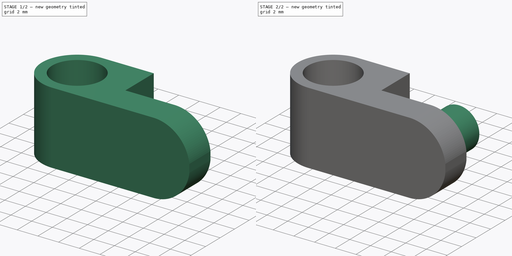
[diagram: build sequence overview — one tinted view per stage of 2, left to right]
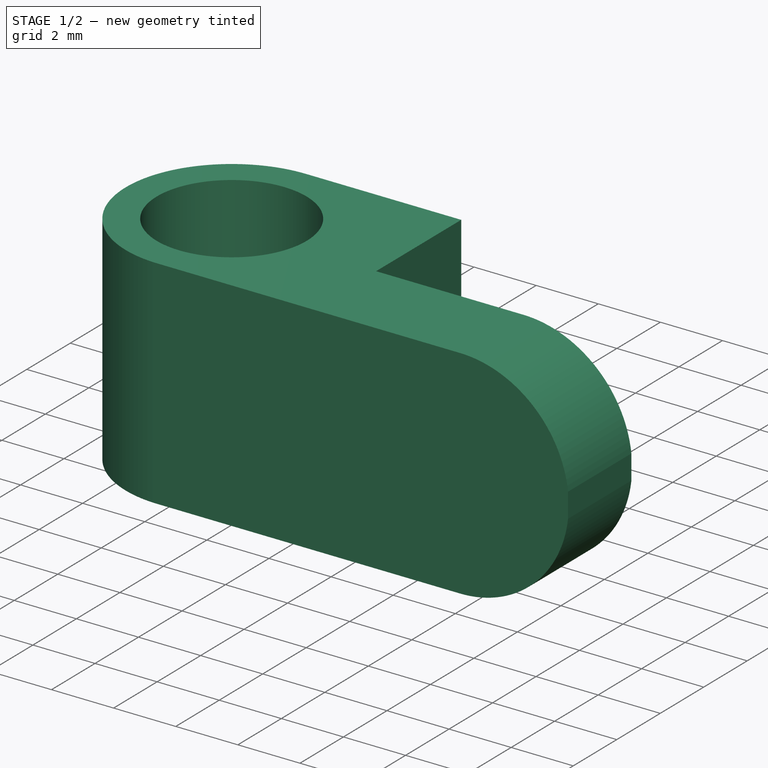
[diagram: stage 1 of 2 — iso view after this stage's code; geometry added in this stage tinted green]
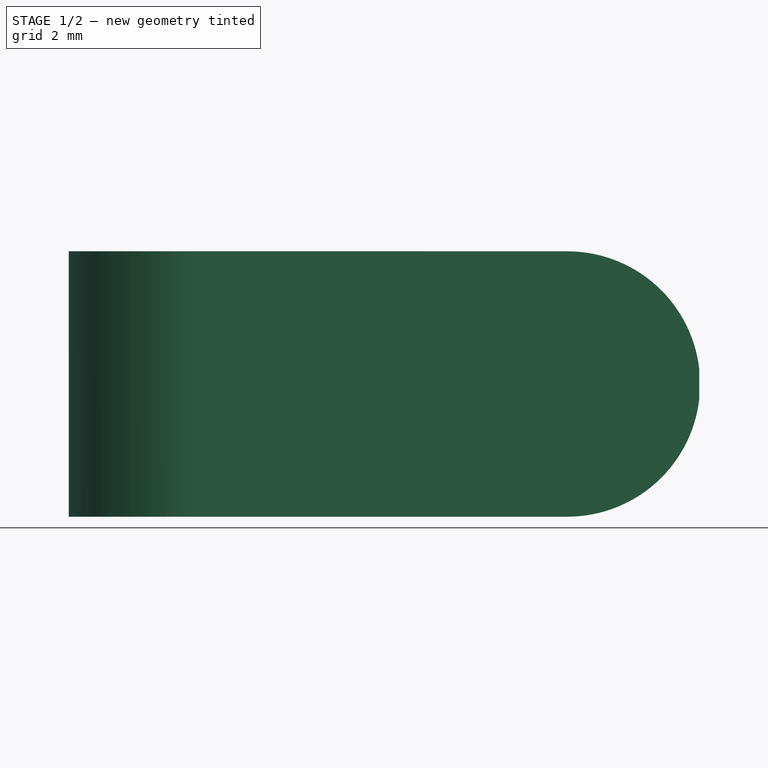
[diagram: stage 1 of 2 — front view after this stage's code; geometry added in this stage tinted green]
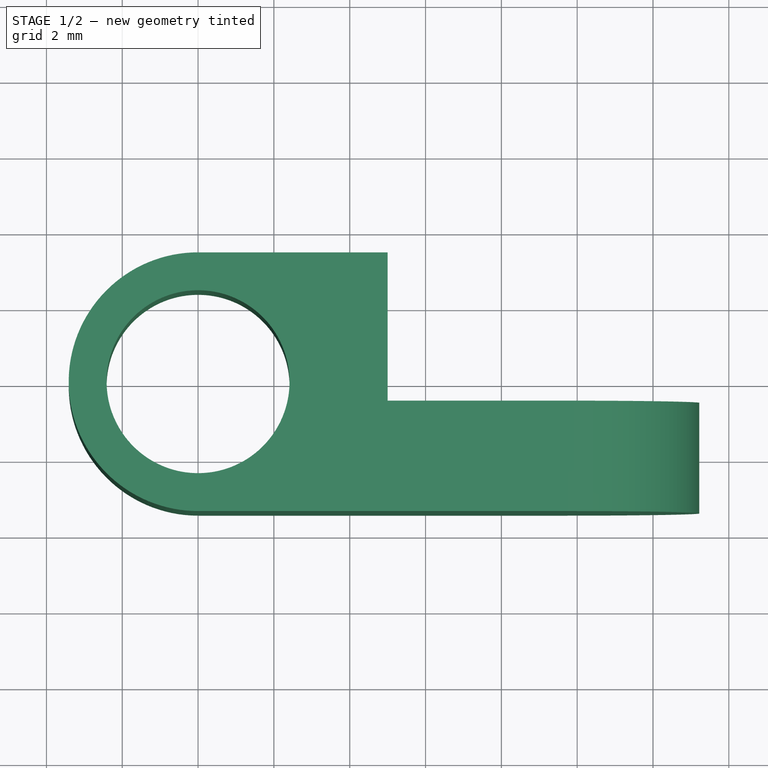
[diagram: stage 1 of 2 — top view after this stage's code; geometry added in this stage tinted green]
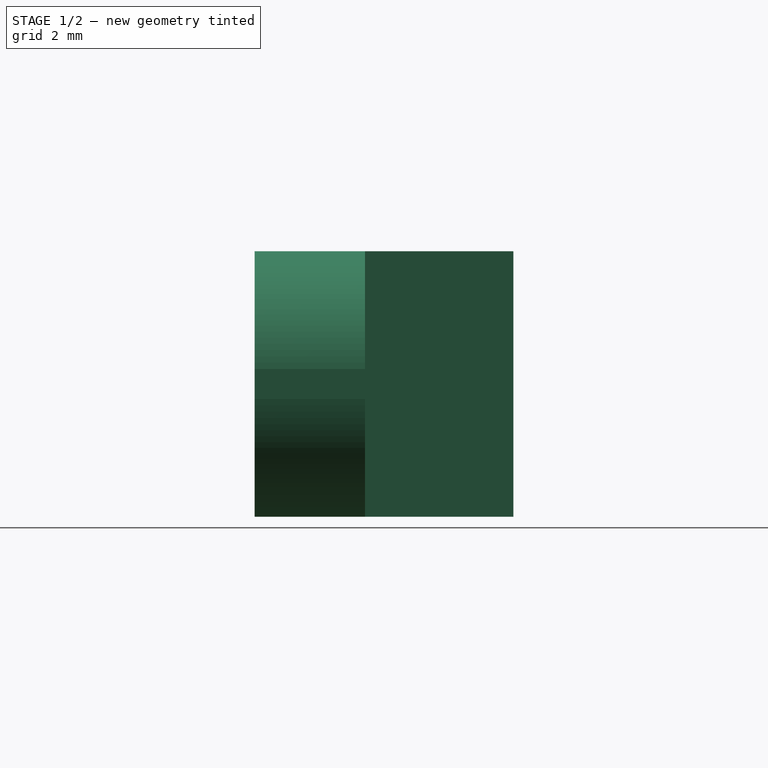
[diagram: stage 1 of 2 — right view after this stage's code; geometry added in this stage tinted green]
FCSTD DOCUMENT  (FreeCAD 0.19R24291 (Git))
Label: Bushing
License: All rights reserved
LicenseURL: http://en.wikipedia.org/wiki/All_rights_reserved
objects: Sketcher::SketchObject×4, PartDesign::Pad×3, PartDesign::Body×2, Spreadsheet::Sheet×1, PartDesign::Pocket×1
note: 14 computed .brp shape members not serialized (recipe doc carries the construction recipe); baked Part::Feature solids carry a one-line shape summary decoded from their .brp

FEATURE [PartDesign::Body] Body  label="Old Bushing"
  Group = -> [Sketch,Pad]
  Origin = -> Origin
  Tip = -> Pad
FEATURE [Sketcher::SketchObject] Sketch001
  FullyConstrained = false
  MapMode = 5
  Support = -> [XY_Plane001]
  expr: Constraints[9] = (<<Parameters>>.HoleSize + <<Parameters>>.Border) / 2
  expr: Constraints[5] = <<Parameters>>.HoleSize / 2 + <<Parameters>>.Border
  expr: Constraints[4] = <<Parameters>>.HoleSize / 2
  sketch-geometry (8):
    g0: ArcOfCircle CenterX=0 CenterY=0 CenterZ=0 NormalX=0 NormalY=0 NormalZ=1 AngleXU=0 Radius=3.413 StartAngle=1.5708 EndAngle=4.71239
    g1: LineSegment StartX=-6e-16 StartY=-3.413 StartZ=0 EndX=13.2204 EndY=-3.413 EndZ=0
    g2: Circle CenterX=0 CenterY=0 CenterZ=0 NormalX=0 NormalY=0 NormalZ=1 AngleXU=0 Radius=2.413
    g3: LineSegment StartX=5 StartY=3.413 StartZ=0 EndX=5 EndY=-0.5 EndZ=0
    g4: LineSegment StartX=5 StartY=-0.5 StartZ=0 EndX=13.2204 EndY=-0.5 EndZ=0
    g5: LineSegment StartX=2e-16 StartY=3.413 StartZ=0 EndX=5 EndY=3.413 EndZ=0
    g6: GeomPoint X=2e-16 Y=3.413 Z=0
    g7: LineSegment StartX=13.2204 StartY=-0.5 StartZ=0 EndX=13.2204 EndY=-3.413 EndZ=0
  constraints (19):
    c: Tangent(g0,g1) = -1.5708
    c: Horizontal(g1)
    c: Coincident(g0,g-1)
    c: Coincident(g2,g0)
    c: Radius(g2) = 2.413
    c: Radius(g0) = 3.413
    c: Vertical(g3)
    c: Coincident(g4,g3)
    c: Horizontal(g4)
    c: DistanceY(g1,g4) = 2.913
    c: PointOnObject(g5,g-2)
    c: Coincident(g5,g3)
    c: Coincident(g6,g5)
    c: Coincident(g5,g0)
    c: Coincident(g7,g4)
    c: Coincident(g7,g1)
    c: Vertical(g7)
    c: Parallel(g5,g-1)
    c: DistanceX(g0,g3) = 5
FEATURE [PartDesign::Pad] Pad001
  Direction = (1,1,1)
  Length = 7
  Length2 = 100
  Profile = -> Sketch001
  Type = 0
FEATURE [Sketcher::SketchObject] Sketch002
  FullyConstrained = false
  MapMode = 5
  Placement = pos=(0,-0.5,0) rot=(0,0.707107,0.707107;3.14159rad)
  Support = -> [Pad001]
  expr: Constraints[1] = Pad001.Length / 2
  sketch-geometry (4):
    g0: ArcOfCircle CenterX=-9.74267 CenterY=3.5 CenterZ=0 NormalX=0 NormalY=0 NormalZ=1 AngleXU=0 Radius=3.5 StartAngle=1.5708 EndAngle=4.71239
    g1: LineSegment StartX=-9.74267 StartY=7 StartZ=0 EndX=-14.1666 EndY=7 EndZ=0
    g2: LineSegment StartX=-14.1666 StartY=7 StartZ=0 EndX=-14.1666 EndY=0 EndZ=0
    g3: LineSegment StartX=-14.1666 StartY=0 StartZ=0 EndX=-9.74267 EndY=0 EndZ=0
  constraints (9):
    c: PointOnObject(g0,g-1)
    c: Radius(g0) = 3.5
    c: Coincident(g1,g2)
    c: Coincident(g2,g3)
    c: Horizontal(g1)
    c: Horizontal(g3)
    c: Vertical(g2)
    c: Coincident(g1,g0)
    c: Coincident(g0,g3)
FEATURE [Sketcher::SketchObject] Sketch003
  FullyConstrained = false
  MapMode = 5
  Placement = pos=(0,-0.5,0) rot=(0,0.707107,0.707107;3.14159rad)
  Support = -> [Pad001]
  expr: Constraints[4] = Pad001.Length / 2
  sketch-geometry (5):
    g0: ArcOfCircle CenterX=-9.74267 CenterY=3.5 CenterZ=0 NormalX=0 NormalY=0 NormalZ=1 AngleXU=0 Radius=3.5 StartAngle=1.5708 EndAngle=4.71239
    g1: LineSegment StartX=-5 StartY=7 StartZ=0 EndX=-9.74267 EndY=7 EndZ=0
    g2: LineSegment StartX=-5 StartY=-1.87e-14 StartZ=0 EndX=-9.74267 EndY=8.9e-15 EndZ=0
    g3: LineSegment StartX=-5 StartY=7 StartZ=0 EndX=-5 EndY=-1.87e-14 EndZ=0
    g4: Circle CenterX=-9.74267 CenterY=3.5 CenterZ=0 NormalX=0 NormalY=0 NormalZ=1 AngleXU=0 Radius=1.98
  constraints (12):
    c: Tangent(g1,g0) = -1.5708
    c: Tangent(g2,g0) = 1.5708
    c: Horizontal(g1)
    c: PointOnObject(g0,g-1)
    c: Radius(g0) = 3.5
    c: Equal(g2,g1)
    c: DistanceX(g2,g-1) = 5
    c: Coincident(g3,g1)
    c: Coincident(g3,g2)
    c: Vertical(g3)
    c: Radius(g4) = 1.98
    c: Coincident(g0,g4)
FEATURE [PartDesign::Pocket] Pocket
  BaseFeature = -> Pad001
  Length = 5
  Length2 = 100
  Profile = -> Sketch002
  Type = 0
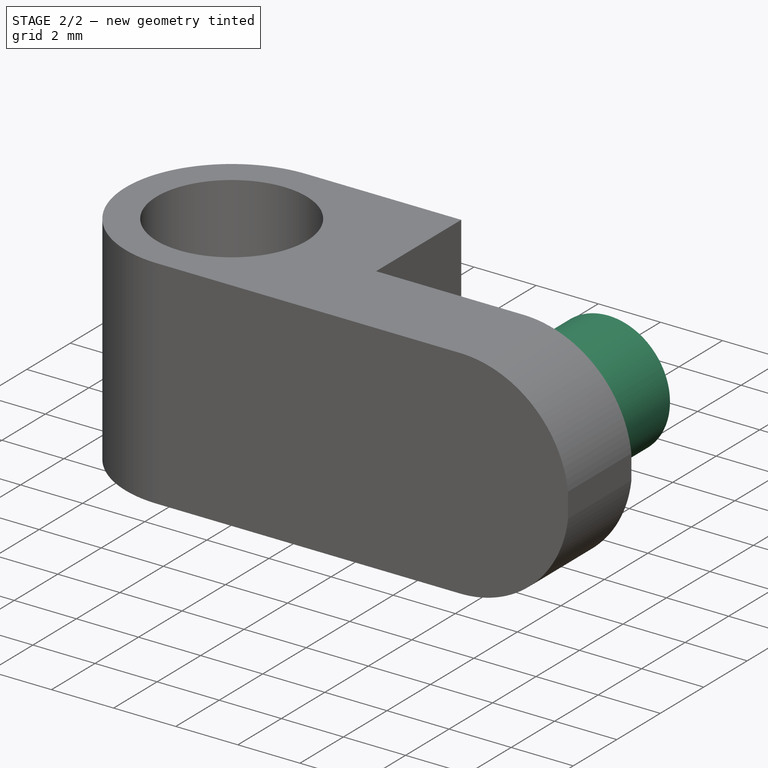
[diagram: stage 2 of 2 — iso view after this stage's code; geometry added in this stage tinted green]
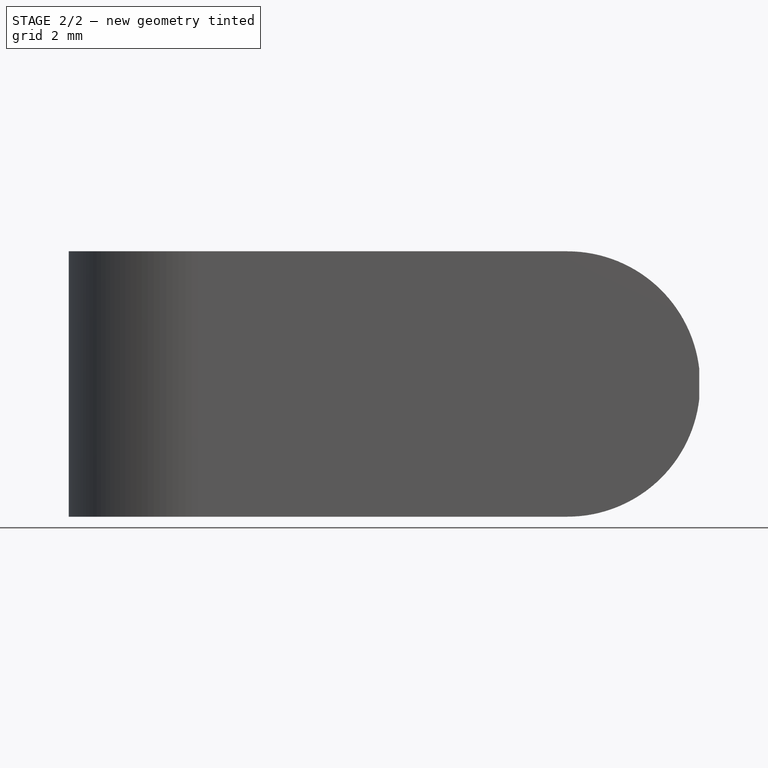
[diagram: stage 2 of 2 — front view after this stage's code; geometry added in this stage tinted green]
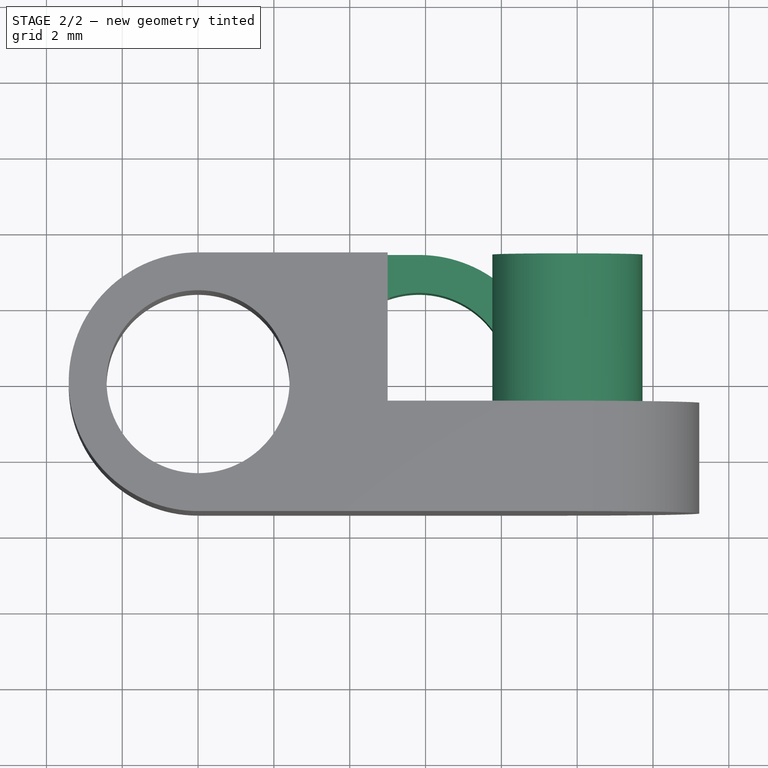
[diagram: stage 2 of 2 — top view after this stage's code; geometry added in this stage tinted green]
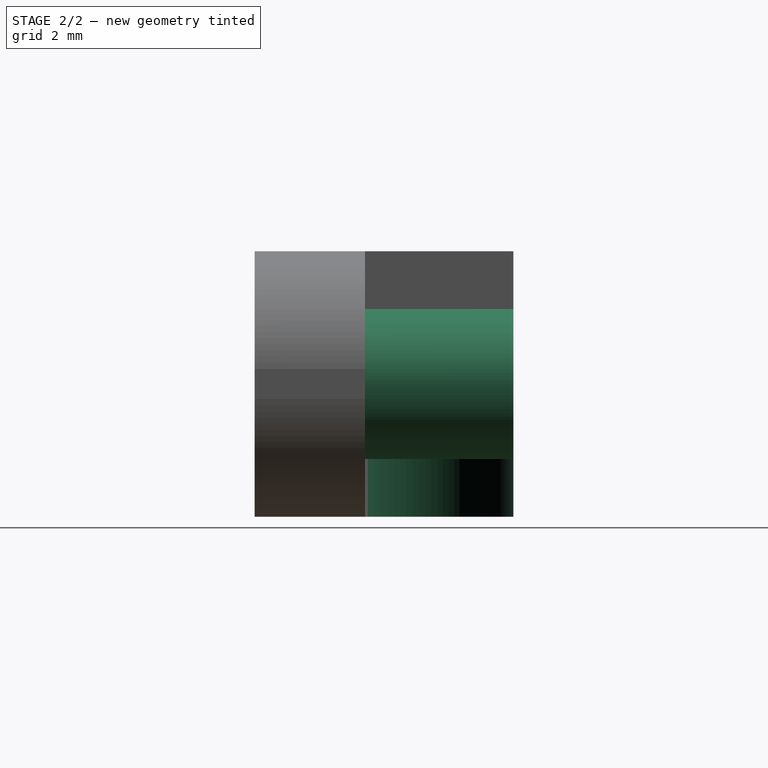
[diagram: stage 2 of 2 — right view after this stage's code; geometry added in this stage tinted green]
FEATURE [Sketcher::SketchObject] Sketch
  FullyConstrained = true
  MapMode = 5
  Support = -> [XY_Plane]
  expr: Constraints[10] = <<Parameters>>.HoleSize + <<Parameters>>.Border
  expr: Constraints[13] = <<Parameters>>.HoleSize / 2 + <<Parameters>>.Border
  expr: Constraints[14] = 0.095in
  expr: Constraints[9] = <<Parameters>>.HoleSize / 2
  sketch-geometry (7):
    g0: ArcOfCircle CenterX=0 CenterY=0 CenterZ=0 NormalX=0 NormalY=0 NormalZ=1 AngleXU=0 Radius=3.413 StartAngle=1.5708 EndAngle=4.71239
    g1: ArcOfCircle CenterX=5.826 CenterY=2e-16 CenterZ=0 NormalX=0 NormalY=0 NormalZ=1 AngleXU=0 Radius=3.413 StartAngle=4.71239 EndAngle=7.85398
    g2: LineSegment StartX=0 StartY=-3.413 StartZ=0 EndX=5.826 EndY=-3.413 EndZ=0
    g3: LineSegment StartX=-4e-16 StartY=3.413 StartZ=0 EndX=5.826 EndY=3.413 EndZ=0
    g4: Circle CenterX=0 CenterY=0 CenterZ=0 NormalX=0 NormalY=0 NormalZ=1 AngleXU=0 Radius=2.413
    g5: Circle CenterX=5.826 CenterY=2e-16 CenterZ=0 NormalX=0 NormalY=0 NormalZ=1 AngleXU=0 Radius=2.413
    g6: LineSegment StartX=0 StartY=0 StartZ=0 EndX=5.826 EndY=2e-16 EndZ=0
  constraints (15):
    c: Tangent(g0,g3) = 1.5708
    c: Tangent(g0,g2) = -1.5708
    c: Tangent(g2,g1) = -1.5708
    c: Tangent(g3,g1) = 1.5708
    c: Horizontal(g2)
    c: Equal(g0,g1)
    c: Coincident(g0,g-1)
    c: Coincident(g4,g0)
    c: Coincident(g5,g1)
    c: Radius(g4) = 2.413
    c: Distance(g0,g1) = 5.826
    c: Coincident(g6,g0)
    c: Coincident(g6,g1)
    c: Radius(g0) = 3.413
    c: Radius(g5) = 2.413
FEATURE [Spreadsheet::Sheet] Spreadsheet  label="Parameters"
  cells = A1=Hole Size; B1(HoleSize)==0.19in; A2=Border; B2(Border)==1mm
FEATURE [PartDesign::Pad] Pad
  Direction = (1,1,1)
  Length = 3
  Length2 = 100
  Profile = -> Sketch
  Type = 0
FEATURE [PartDesign::Pad] Pad002
  BaseFeature = -> Pocket
  Direction = (1,1,1)
  Length = 3.913
  Length2 = 100
  Profile = -> Sketch003
  Type = 0
  expr: Length = (<<Parameters>>.HoleSize + <<Parameters>>.Border) / 2 + <<Parameters>>.Border
FEATURE [PartDesign::Body] Body001
  Group = -> [Sketch001,Pad001,Sketch002,Pocket,Sketch003,Pad002]
  Origin = -> Origin001
  Tip = -> Pad002
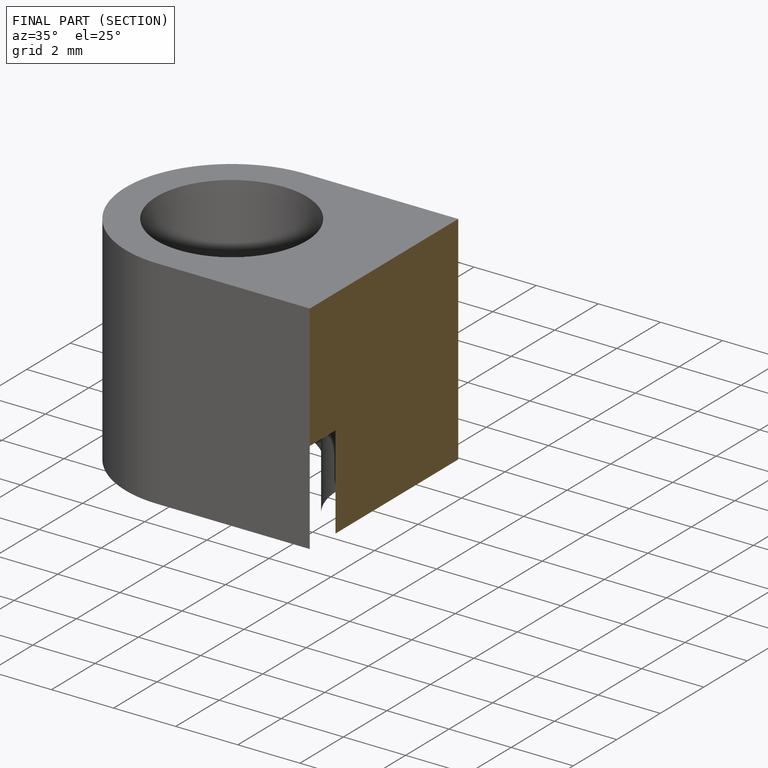
[diagram: finished part — half-section view (interior)]
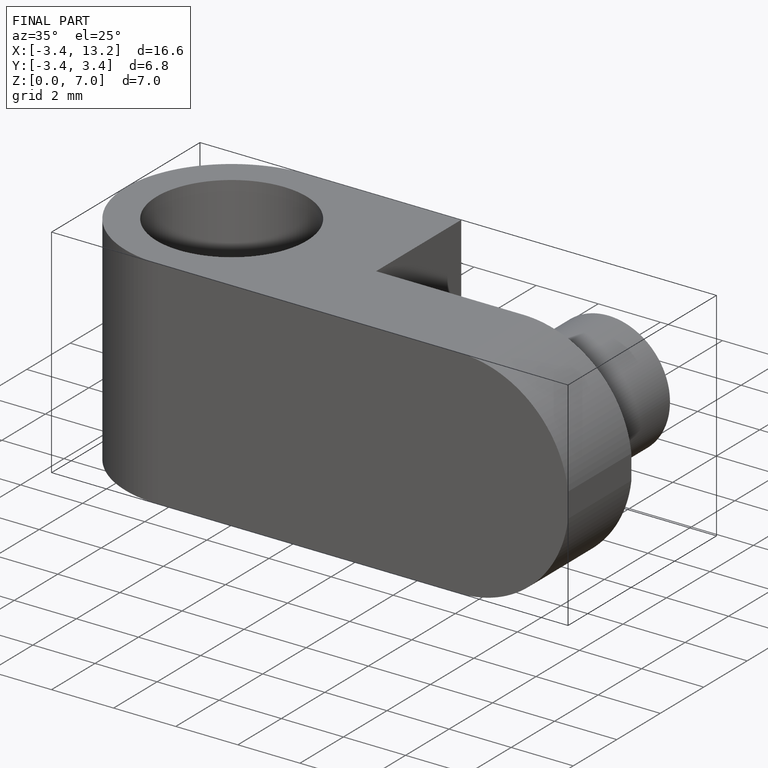
[diagram: finished part — iso view with bounding-box wireframe]
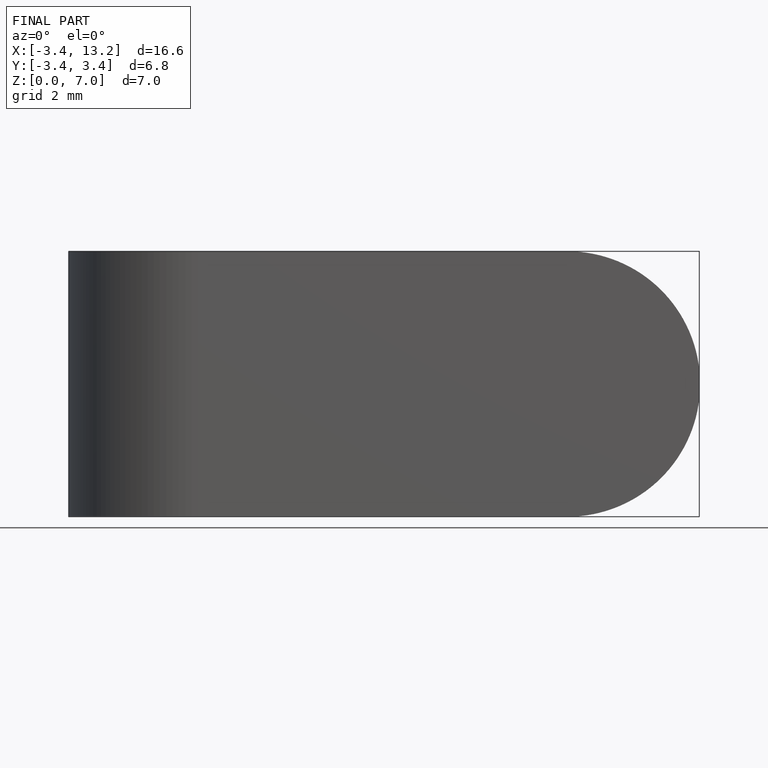
[diagram: finished part — front view with bounding-box wireframe]
